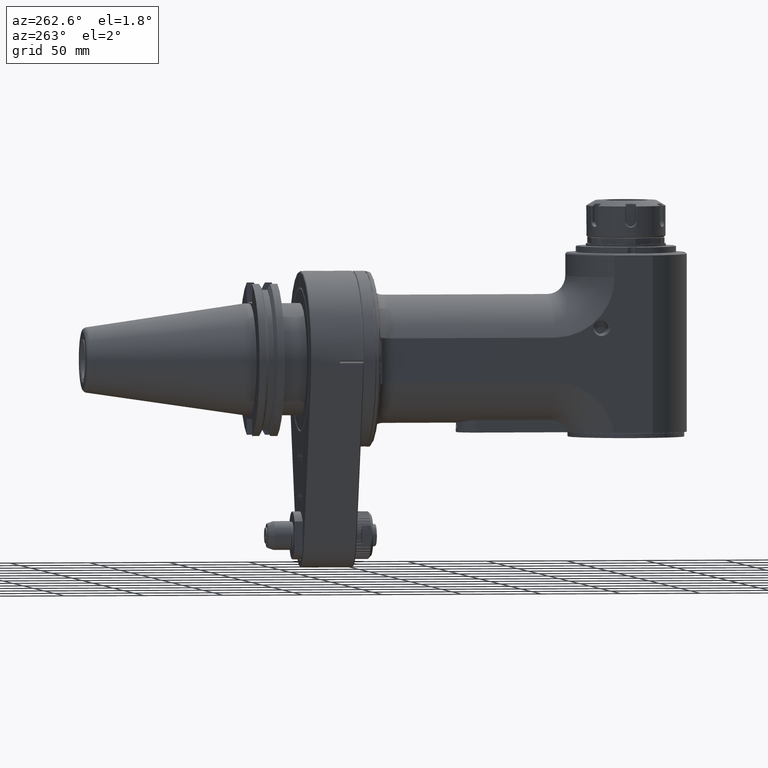
[diagram: clean part render]
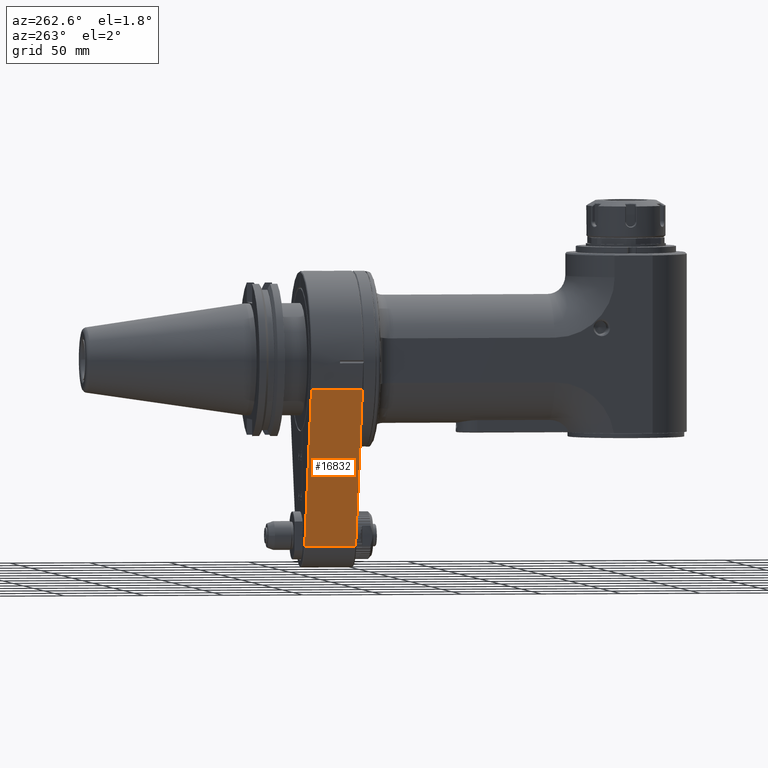
[diagram: same view with one face highlighted and labeled with its STEP entity id]
A machine part, auxiliary view. The second image highlights one B-rep face of the part: STEP entity #16832.
In plain terms, the highlighted planar face has unit normal (-0.948, 0, -0.3182).
Its self-contained STEP definition (entity closure, byte-faithful):
#877=PLANE('',#18500);
#1745=FACE_OUTER_BOUND('',#2792,.T.);
#2792=EDGE_LOOP('',(#14693,#14694,#14695,#14696));
#4856=LINE('',#29871,#6228);
#5076=LINE('',#31453,#6448);
#5077=LINE('',#31456,#6449);
#5078=LINE('',#31457,#6450);
#6228=VECTOR('',#21740,10.);
#6448=VECTOR('',#22566,31.99970555867);
#6449=VECTOR('',#22569,10.);
#6450=VECTOR('',#22570,31.9997170613216);
#7958=VERTEX_POINT('',#29866);
#7959=VERTEX_POINT('',#29870);
#8219=VERTEX_POINT('',#31448);
#8220=VERTEX_POINT('',#31455);
#10056=EDGE_CURVE('',#7959,#7958,#4856,.T.);
#10470=EDGE_CURVE('',#7958,#8219,#5076,.T.);
#10471=EDGE_CURVE('',#8219,#8220,#5077,.T.);
#10472=EDGE_CURVE('',#8220,#7959,#5078,.T.);
#14693=ORIENTED_EDGE('',*,*,#10471,.T.);
#14694=ORIENTED_EDGE('',*,*,#10472,.T.);
#14695=ORIENTED_EDGE('',*,*,#10056,.T.);
#14696=ORIENTED_EDGE('',*,*,#10470,.T.);
#16832=ADVANCED_FACE('',(#1745),#877,.T.);
#18500=AXIS2_PLACEMENT_3D('',#31454,#22567,#22568);
#21740=DIRECTION('',(-0.318181818181799,1.4013075193753E-14,0.948029709755198));
#22566=DIRECTION('',(2.321053611972E-12,1.,-6.966824605609E-12));
#22567=DIRECTION('center_axis',(-0.948029709755198,0.,-0.318181818181799));
#22568=DIRECTION('ref_axis',(-0.318181818181799,0.,0.948029709755198));
#22569=DIRECTION('',(0.318181818181799,1.40523275052191E-14,-0.948029709755198));
#22570=DIRECTION('',(5.18968750168674E-7,-0.99999999999985,1.74178719849591E-7));
#29866=CARTESIAN_POINT('',(-52.1416341650118,0.500137438910535,-17.5000000892934));
#29870=CARTESIAN_POINT('',(-18.9605538911104,0.5001677642414,-116.363622732145));
#29871=CARTESIAN_POINT('',(-27.2558541554525,0.499999999985104,-91.6477272727054));
#31448=CARTESIAN_POINT('',(-52.1416340225252,32.4998628263719,-17.500000041717));
#31453=CARTESIAN_POINT('',(-52.14163402252,0.5001471717448,-17.50000004147));
#31454=CARTESIAN_POINT('Origin',(-18.9605941951,0.,-116.3636363636));
#31455=CARTESIAN_POINT('',(-18.9605942265989,32.4998140855906,-116.363636269772));
#31456=CARTESIAN_POINT('',(-27.2558541554526,32.5000000000149,-91.6477272727052));
#31457=CARTESIAN_POINT('',(-18.96058517251,32.49983229424,-116.363633231));